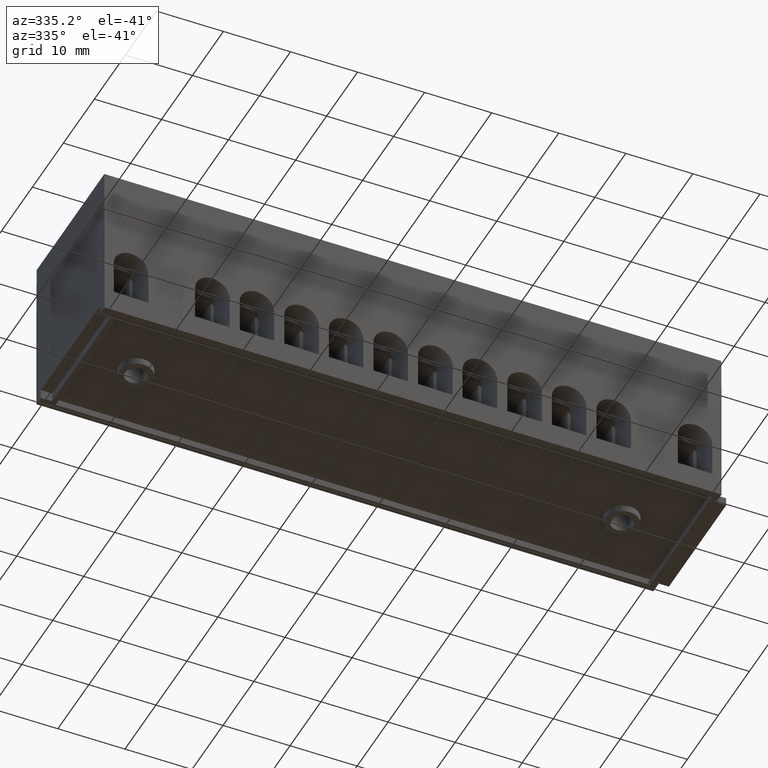
[diagram: clean part render]
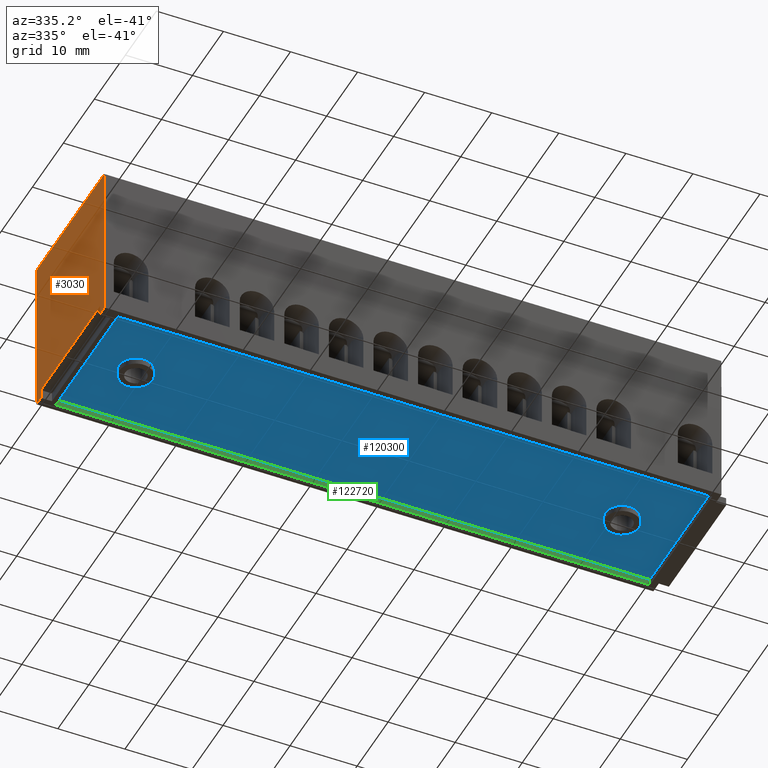
[diagram: same view with three faces highlighted in distinct colors, each labeled with its STEP entity id]
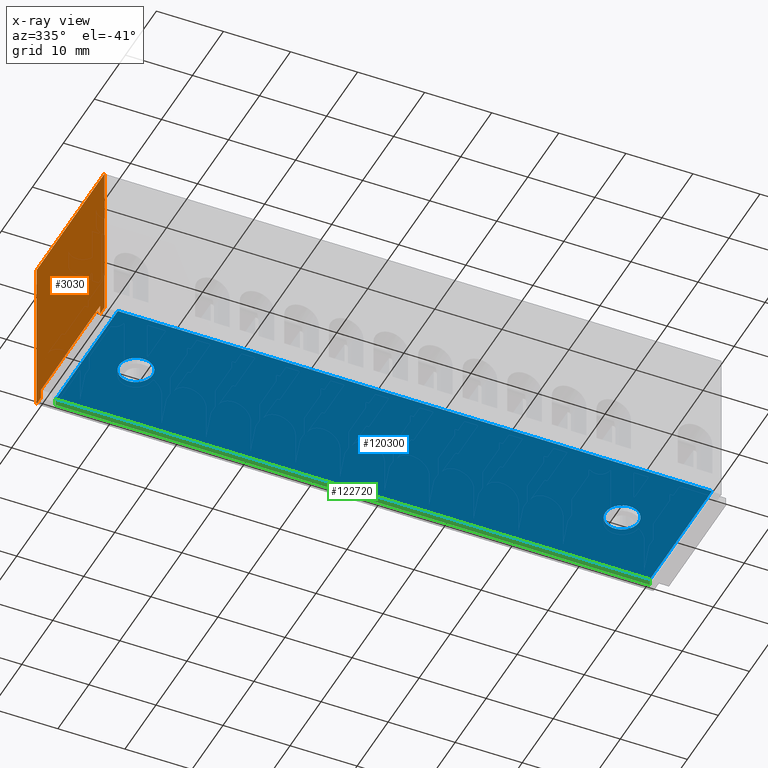
[diagram: x-ray of the same camera — body ghosted, the three highlighted faces saturated]
A machine part, auxiliary view with three faces highlighted in distinct colors.
The next image is the same camera in x-ray (body ghosted, the three faces saturated) — at least one of them is partly hidden behind the body in this view.
Their STEP definitions:

[orange] entity #3030 — the highlighted planar face has unit normal (-1, -0, 0).
#1030=CARTESIAN_POINT('',(-135.482337741337,-194.578083115857,
1.37226368064175));
#1040=VERTEX_POINT('',#1030);
#1070=CARTESIAN_POINT('',(-135.482337741337,-194.578083115857,
21.9222636806418));
#1080=DIRECTION('',(0.,-2.22044604925031E-16,-1.));
#1090=VECTOR('',#1080,1.);
#1100=LINE('',#1070,#1090);
#1110=CARTESIAN_POINT('',(-135.482337741337,-194.578083115857,
20.4722636806418));
#1120=VERTEX_POINT('',#1110);
#1130=EDGE_CURVE('',#1120,#1040,#1100,.T.);
#1480=CARTESIAN_POINT('',(-135.482337741337,-195.978083115857,
1.37226368064175));
#1490=VERTEX_POINT('',#1480);
#1540=CARTESIAN_POINT('',(-135.482337741337,-4.5630166312094E-15,
1.37226368064171));
#1550=DIRECTION('',(0.,-1.,2.22044604925031E-16));
#1560=VECTOR('',#1550,1.);
#1570=LINE('',#1540,#1560);
#1580=EDGE_CURVE('',#1040,#1490,#1570,.T.);
#1830=CARTESIAN_POINT('',(-135.482337741337,-3.21964677141297E-16,
20.4722636806417));
#1840=DIRECTION('',(0.,-1.,2.22044604925031E-16));
#1850=VECTOR('',#1840,1.);
#1860=LINE('',#1830,#1850);
#1870=CARTESIAN_POINT('',(-135.482337741337,-195.978083115857,
20.4722636806418));
#1880=VERTEX_POINT('',#1870);
#1890=EDGE_CURVE('',#1120,#1880,#1860,.T.);
#2390=CARTESIAN_POINT('',(-135.482337741337,-183.978083115857,11.));
#2400=DIRECTION('',(-1.,0.,0.));
#2410=DIRECTION('',(0.,-1.,0.));
#2420=AXIS2_PLACEMENT_3D('',#2390,#2400,#2410);
#2430=PLANE('',#2420);
#2440=CARTESIAN_POINT('',(-135.482337741337,-195.978083115857,
21.9222636806418));
#2450=DIRECTION('',(0.,3.33066907387547E-16,1.));
#2460=VECTOR('',#2450,1.);
#2470=LINE('',#2440,#2460);
#2480=CARTESIAN_POINT('',(-135.482337741337,-195.978083115857,
21.9222639343583));
#2490=VERTEX_POINT('',#2480);
#2500=EDGE_CURVE('',#1880,#2490,#2470,.T.);
#2510=ORIENTED_EDGE('',*,*,#2500,.T.);
#2520=ORIENTED_EDGE('',*,*,#1890,.T.);
#2530=ORIENTED_EDGE('',*,*,#1130,.F.);
#2540=ORIENTED_EDGE('',*,*,#1580,.F.);
#2550=CARTESIAN_POINT('',(-135.482337741337,-195.978083115857,
21.9222636806418));
#2560=DIRECTION('',(0.,3.33066907387547E-16,1.));
#2570=VECTOR('',#2560,1.);
#2580=LINE('',#2550,#2570);
#2590=CARTESIAN_POINT('',(-135.482337741337,-195.978083115857,
-0.0777363193582445));
#2600=VERTEX_POINT('',#2590);
#2610=EDGE_CURVE('',#2600,#1490,#2580,.T.);
#2620=ORIENTED_EDGE('',*,*,#2610,.T.);
#2630=CARTESIAN_POINT('',(-135.482337741337,-195.978083115857,
-0.0777363193582623));
#2640=DIRECTION('',(0.,1.,-3.33066907387547E-16));
#2650=VECTOR('',#2640,1.);
#2660=LINE('',#2630,#2650);
#2670=CARTESIAN_POINT('',(-135.482337741337,-180.885783017138,
-0.0777363193582445));
#2680=VERTEX_POINT('',#2670);
#2690=EDGE_CURVE('',#2600,#2680,#2660,.T.);
#2700=ORIENTED_EDGE('',*,*,#2690,.F.);
#2710=CARTESIAN_POINT('',(-135.482337741337,-171.978083115857,
-7.105427357601E-15));
#2720=DIRECTION('',(0.,-0.999961923064171,-0.00872653549837371));
#2730=VECTOR('',#2720,1.);
#2740=LINE('',#2710,#2730);
#2750=CARTESIAN_POINT('',(-135.482337741337,-171.978083115857,
-7.105427357601E-15));
#2760=VERTEX_POINT('',#2750);
#2770=EDGE_CURVE('',#2760,#2680,#2740,.T.);
#2780=ORIENTED_EDGE('',*,*,#2770,.T.);
#2790=CARTESIAN_POINT('',(-135.482337741337,-171.978083115857,
-28.9186980037542));
#2800=DIRECTION('',(0.,-2.22044604925031E-16,-1.));
#2810=VECTOR('',#2800,1.);
#2820=LINE('',#2790,#2810);
#2830=CARTESIAN_POINT('',(-135.482337741337,-171.978083115857,
21.8445273612835));
#2840=VERTEX_POINT('',#2830);
#2850=EDGE_CURVE('',#2840,#2760,#2820,.T.);
#2860=ORIENTED_EDGE('',*,*,#2850,.T.);
#2870=CARTESIAN_POINT('',(-135.482337741337,-171.978083115857,
21.8445273612835));
#2880=DIRECTION('',(0.,0.999961923064171,-0.00872653549837416));
#2890=VECTOR('',#2880,1.);
#2900=LINE('',#2870,#2890);
#2910=CARTESIAN_POINT('',(-135.482337741337,-180.885783021568,
21.9222639343583));
#2920=VERTEX_POINT('',#2910);
#2930=EDGE_CURVE('',#2920,#2840,#2900,.T.);
#2940=ORIENTED_EDGE('',*,*,#2930,.T.);
#2950=CARTESIAN_POINT('',(-135.482337741337,-193.978083115857,
21.9222636806418));
#2960=DIRECTION('',(0.,1.,-2.22044604925031E-16));
#2970=VECTOR('',#2960,1.);
#2980=LINE('',#2950,#2970);
#2990=EDGE_CURVE('',#2490,#2920,#2980,.T.);
#3000=ORIENTED_EDGE('',*,*,#2990,.T.);
#3010=EDGE_LOOP('',(#3000,#2940,#2860,#2780,#2700,#2620,#2540,#2530,
#2520,#2510));
#3020=FACE_OUTER_BOUND('',#3010,.T.);
#3030=ADVANCED_FACE('',(#3020),#2430,.T.);

[blue] entity #120300 — the highlighted planar face has unit normal (-0, -0, -1).
#119410=CARTESIAN_POINT('',(-123.232337741337,-194.978083115857,
10.9222636806417));
#119420=VERTEX_POINT('',#119410);
#119500=CARTESIAN_POINT('',(-128.232337741337,-194.978083115857,
10.9222636806417));
#119510=VERTEX_POINT('',#119500);
#119540=CARTESIAN_POINT('',(-125.732337741337,-194.978083115857,
10.9222636806417));
#119550=DIRECTION('',(4.62223186652936E-33,1.,-3.33066907387547E-16));
#119560=DIRECTION('',(1.,9.24446373305873E-33,4.16333634234434E-17));
#119570=AXIS2_PLACEMENT_3D('',#119540,#119550,#119560);
#119580=CIRCLE('',#119570,2.5);
#119590=EDGE_CURVE('',#119510,#119420,#119580,.T.);
#119710=CARTESIAN_POINT('',(-79.7454307021215,-194.978083115857,
10.9222636806417));
#119720=DIRECTION('',(-4.62223186652936E-33,-1.,3.33066907387547E-16));
#119730=DIRECTION('',(-1.,-9.24446373305873E-33,-4.16333634234434E-17));
#119740=AXIS2_PLACEMENT_3D('',#119710,#119720,#119730);
#119750=PLANE('',#119740);
#119760=CARTESIAN_POINT('',(-53.2323377413369,-194.978083115857,
10.9222636806417));
#119770=DIRECTION('',(4.62223186652936E-33,1.,-3.33066907387547E-16));
#119780=DIRECTION('',(1.,9.24446373305873E-33,4.16333634234434E-17));
#119790=AXIS2_PLACEMENT_3D('',#119760,#119770,#119780);
#119800=CIRCLE('',#119790,2.5);
#119810=CARTESIAN_POINT('',(-50.7323377413369,-194.978083115857,
10.9222636806417));
#119820=VERTEX_POINT('',#119810);
#119830=CARTESIAN_POINT('',(-55.7323377413369,-194.978083115857,
10.9222636806417));
#119840=VERTEX_POINT('',#119830);
#119850=EDGE_CURVE('',#119820,#119840,#119800,.T.);
#119860=ORIENTED_EDGE('',*,*,#119850,.T.);
#119870=EDGE_CURVE('',#119840,#119820,#119800,.T.);
#119880=ORIENTED_EDGE('',*,*,#119870,.T.);
#119890=EDGE_LOOP('',(#119880,#119860));
#119900=FACE_BOUND('',#119890,.T.);
#119910=CARTESIAN_POINT('',(-133.058523662906,-194.978083115857,
-31.843841120151));
#119920=DIRECTION('',(4.16333634234433E-17,-3.33066907387547E-16,-1.));
#119930=VECTOR('',#119920,1.);
#119940=LINE('',#119910,#119930);
#119950=CARTESIAN_POINT('',(-133.058523662906,-194.978083115857,
20.9484496022109));
#119960=VERTEX_POINT('',#119950);
#119970=CARTESIAN_POINT('',(-133.058523662906,-194.978083115857,
0.896077759072554));
#119980=VERTEX_POINT('',#119970);
#119990=EDGE_CURVE('',#119960,#119980,#119940,.T.);
#120000=ORIENTED_EDGE('',*,*,#119990,.T.);
#120010=CARTESIAN_POINT('',(-163.266877277511,-194.978083115857,
20.9484496022109));
#120020=DIRECTION('',(1.,9.24446373305873E-33,4.16333634234434E-17));
#120030=VECTOR('',#120020,1.);
#120040=LINE('',#120010,#120030);
#120050=CARTESIAN_POINT('',(-44.4561518197677,-194.978083115857,
20.9484496022109));
#120060=VERTEX_POINT('',#120050);
#120070=EDGE_CURVE('',#119960,#120060,#120040,.T.);
#120080=ORIENTED_EDGE('',*,*,#120070,.F.);
#120090=CARTESIAN_POINT('',(-44.4561518197677,-194.978083115857,
-31.843841120151));
#120100=DIRECTION('',(-4.16333634234434E-17,3.33066907387547E-16,1.));
#120110=VECTOR('',#120100,1.);
#120120=LINE('',#120090,#120110);
#120130=CARTESIAN_POINT('',(-44.4561518197677,-194.978083115857,
0.896077759072561));
#120140=VERTEX_POINT('',#120130);
#120150=EDGE_CURVE('',#120140,#120060,#120120,.T.);
#120160=ORIENTED_EDGE('',*,*,#120150,.T.);
#120170=CARTESIAN_POINT('',(-163.266877277511,-194.978083115857,
0.896077759072558));
#120180=DIRECTION('',(1.,9.24446373305873E-33,4.16333634234434E-17));
#120190=VECTOR('',#120180,1.);
#120200=LINE('',#120170,#120190);
#120210=EDGE_CURVE('',#119980,#120140,#120200,.T.);
#120220=ORIENTED_EDGE('',*,*,#120210,.T.);
#120230=EDGE_LOOP('',(#120220,#120160,#120080,#120000));
#120240=FACE_OUTER_BOUND('',#120230,.T.);
#120250=EDGE_CURVE('',#119420,#119510,#119580,.T.);
#120260=ORIENTED_EDGE('',*,*,#120250,.T.);
#120270=ORIENTED_EDGE('',*,*,#119590,.T.);
#120280=EDGE_LOOP('',(#120270,#120260));
#120290=FACE_BOUND('',#120280,.T.);
#120300=ADVANCED_FACE('',(#119900,#120240,#120290),#119750,.T.);

[green] entity #122720 — the highlighted planar face has unit normal (-0, -1, 0).
#119970=CARTESIAN_POINT('',(-133.058523662906,-194.978083115857,
0.896077759072554));
#119980=VERTEX_POINT('',#119970);
#120130=CARTESIAN_POINT('',(-44.4561518197677,-194.978083115857,
0.896077759072561));
#120140=VERTEX_POINT('',#120130);
#120170=CARTESIAN_POINT('',(-163.266877277511,-194.978083115857,
0.896077759072558));
#120180=DIRECTION('',(1.,9.24446373305873E-33,4.16333634234434E-17));
#120190=VECTOR('',#120180,1.);
#120200=LINE('',#120170,#120190);
#120210=EDGE_CURVE('',#119980,#120140,#120200,.T.);
#122250=CARTESIAN_POINT('',(-133.058523662906,-195.978083115857,
0.896077759072558));
#122260=DIRECTION('',(4.62223186652936E-33,1.,-3.33066907387547E-16));
#122270=VECTOR('',#122260,1.);
#122280=LINE('',#122250,#122270);
#122290=CARTESIAN_POINT('',(-133.058523662906,-195.978083115857,
0.896077759072554));
#122300=VERTEX_POINT('',#122290);
#122310=EDGE_CURVE('',#122300,#119980,#122280,.T.);
#122490=CARTESIAN_POINT('',(-62.8561518197677,-195.978083115857,
0.896077759072558));
#122500=DIRECTION('',(-4.16333634234434E-17,3.33066907387547E-16,1.));
#122510=DIRECTION('',(1.,9.24446373305873E-33,4.16333634234434E-17));
#122520=AXIS2_PLACEMENT_3D('',#122490,#122500,#122510);
#122530=PLANE('',#122520);
#122540=ORIENTED_EDGE('',*,*,#122310,.F.);
#122550=ORIENTED_EDGE('',*,*,#120210,.F.);
#122560=CARTESIAN_POINT('',(-44.4561518197677,-195.978083115857,
0.896077759072551));
#122570=DIRECTION('',(4.62223186652936E-33,1.,-3.33066907387547E-16));
#122580=VECTOR('',#122570,1.);
#122590=LINE('',#122560,#122580);
#122600=CARTESIAN_POINT('',(-44.4561518197677,-195.978083115857,
0.896077759072561));
#122610=VERTEX_POINT('',#122600);
#122620=EDGE_CURVE('',#122610,#120140,#122590,.T.);
#122630=ORIENTED_EDGE('',*,*,#122620,.T.);
#122640=CARTESIAN_POINT('',(-61.8823377413369,-195.978083115857,
0.896077759072558));
#122650=DIRECTION('',(1.,1.23259516440783E-32,4.16333634234434E-17));
#122660=VECTOR('',#122650,1.);
#122670=LINE('',#122640,#122660);
#122680=EDGE_CURVE('',#122300,#122610,#122670,.T.);
#122690=ORIENTED_EDGE('',*,*,#122680,.T.);
#122700=EDGE_LOOP('',(#122690,#122630,#122550,#122540));
#122710=FACE_OUTER_BOUND('',#122700,.T.);
#122720=ADVANCED_FACE('',(#122710),#122530,.T.);